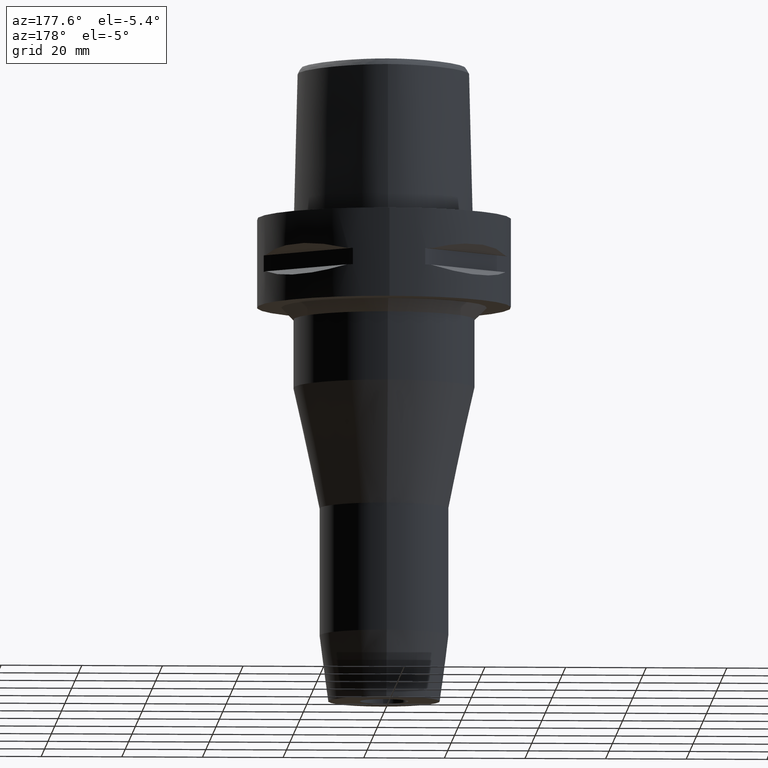
[diagram: clean part render]
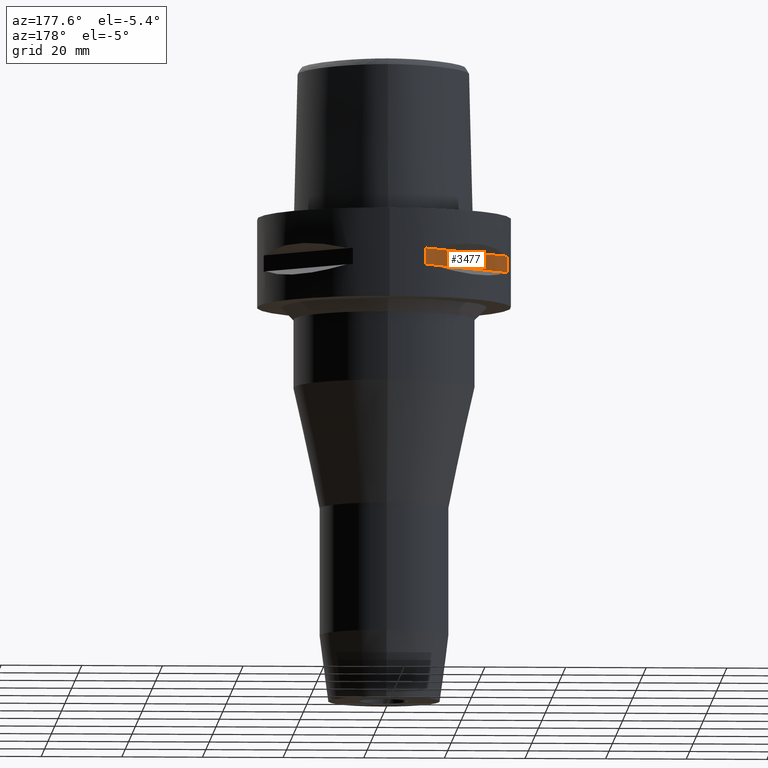
[diagram: same view with one face highlighted and labeled with its STEP entity id]
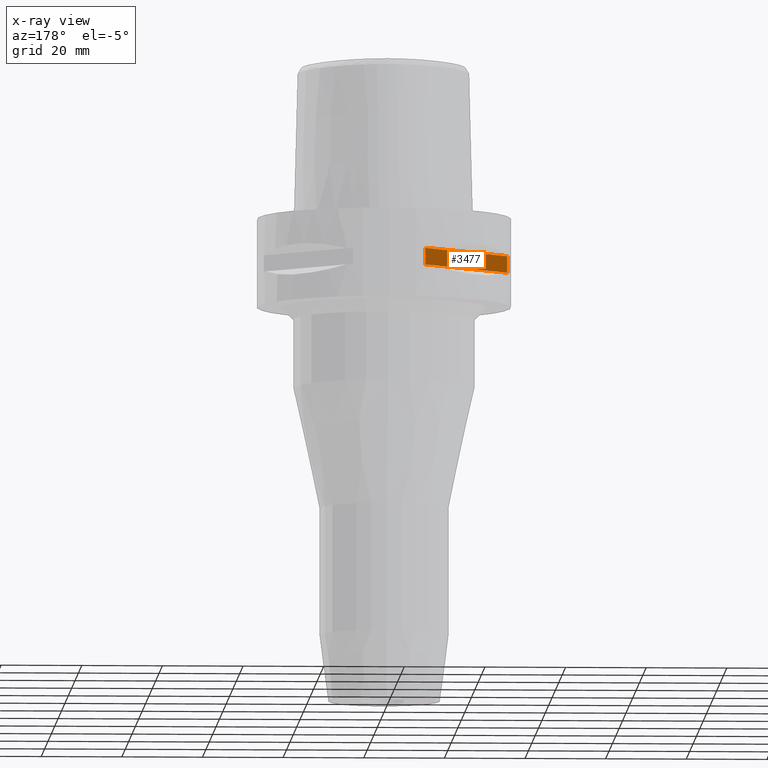
[diagram: x-ray of the same camera — body ghosted, the highlighted face saturated]
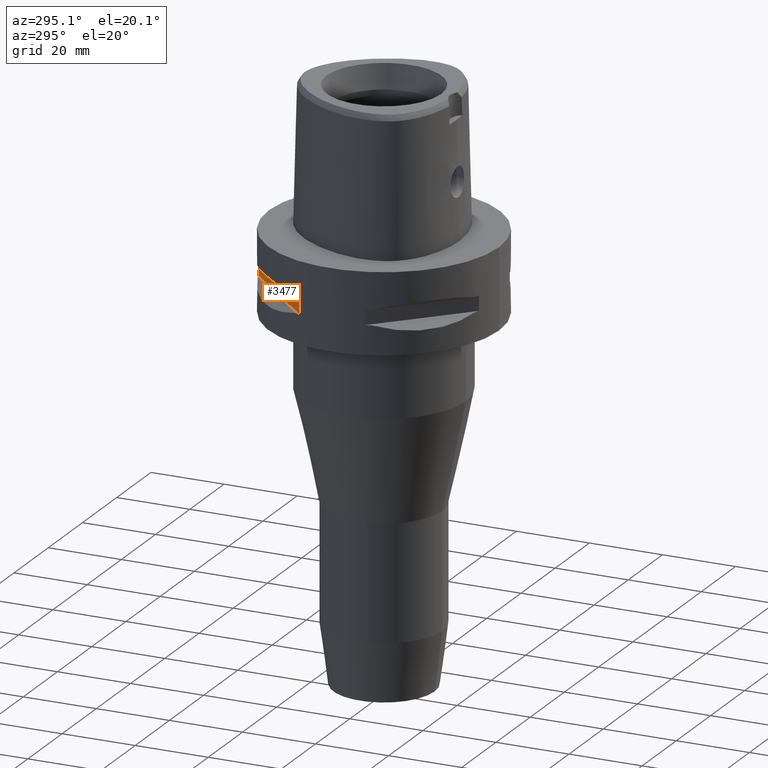
[diagram: same view with one face highlighted and labeled with its STEP entity id]
A machine part, auxiliary view. The second image highlights one B-rep face of the part: STEP entity #3477.
The next image is the same camera in x-ray: the body ghosted, the highlighted face saturated — about 0% of this face is hidden behind the body in this view.
A second angle (auxiliary view) of the same face is appended — the face is thin or edge-on in the first view.
In plain terms, the highlighted planar face has unit normal (0.7071, -0.7071, 0).
Its self-contained STEP definition (entity closure, byte-faithful):
#402=DIRECTION('',(0.E0,0.E0,-1.E0));
#403=VECTOR('',#402,4.1E0);
#404=CARTESIAN_POINT('',(-8.981198972018E0,3.019251670572E1,-9.95E0));
#405=LINE('',#404,#403);
#420=DIRECTION('',(0.E0,0.E0,1.E0));
#421=VECTOR('',#420,4.1E0);
#422=CARTESIAN_POINT('',(-3.019251670572E1,8.981198972018E0,-1.405E1));
#423=LINE('',#422,#421);
#1485=DIRECTION('',(-7.071067811865E-1,-7.071067811865E-1,0.E0));
#1486=VECTOR('',#1485,2.999733321480E1);
#1487=CARTESIAN_POINT('',(-8.981198972018E0,3.019251670572E1,-9.95E0));
#1488=LINE('',#1487,#1486);
#1508=DIRECTION('',(-7.071067811865E-1,-7.071067811865E-1,0.E0));
#1509=VECTOR('',#1508,2.999733321480E1);
#1510=CARTESIAN_POINT('',(-8.981198972018E0,3.019251670572E1,-1.405E1));
#1511=LINE('',#1510,#1509);
#1618=CARTESIAN_POINT('',(-8.981198972020E0,3.019251670572E1,-9.95E0));
#1619=VERTEX_POINT('',#1618);
#1620=CARTESIAN_POINT('',(-8.981198972018E0,3.019251670572E1,-1.405E1));
#1621=VERTEX_POINT('',#1620);
#1625=CARTESIAN_POINT('',(-3.019251670572E1,8.981198972020E0,-1.405E1));
#1626=VERTEX_POINT('',#1625);
#1627=CARTESIAN_POINT('',(-3.019251670572E1,8.981198972018E0,-9.95E0));
#1628=VERTEX_POINT('',#1627);
#3465=CARTESIAN_POINT('',(-3.372899346260E1,5.444722215136E0,-9.95E0));
#3466=DIRECTION('',(7.071067811865E-1,-7.071067811865E-1,0.E0));
#3467=DIRECTION('',(0.E0,0.E0,-1.E0));
#3468=AXIS2_PLACEMENT_3D('',#3465,#3466,#3467);
#3469=PLANE('',#3468);
#3470=ORIENTED_EDGE('',*,*,#2485,.F.);
#3472=ORIENTED_EDGE('',*,*,#3471,.F.);
#3473=ORIENTED_EDGE('',*,*,#2477,.F.);
#3474=ORIENTED_EDGE('',*,*,#3458,.T.);
#3475=EDGE_LOOP('',(#3470,#3472,#3473,#3474));
#3476=FACE_OUTER_BOUND('',#3475,.F.);
#2477=EDGE_CURVE('',#1619,#1621,#405,.T.);
#2485=EDGE_CURVE('',#1626,#1628,#423,.T.);
#3458=EDGE_CURVE('',#1619,#1628,#1488,.T.);
#3471=EDGE_CURVE('',#1621,#1626,#1511,.T.);
#3477=ADVANCED_FACE('',(#3476),#3469,.F.);